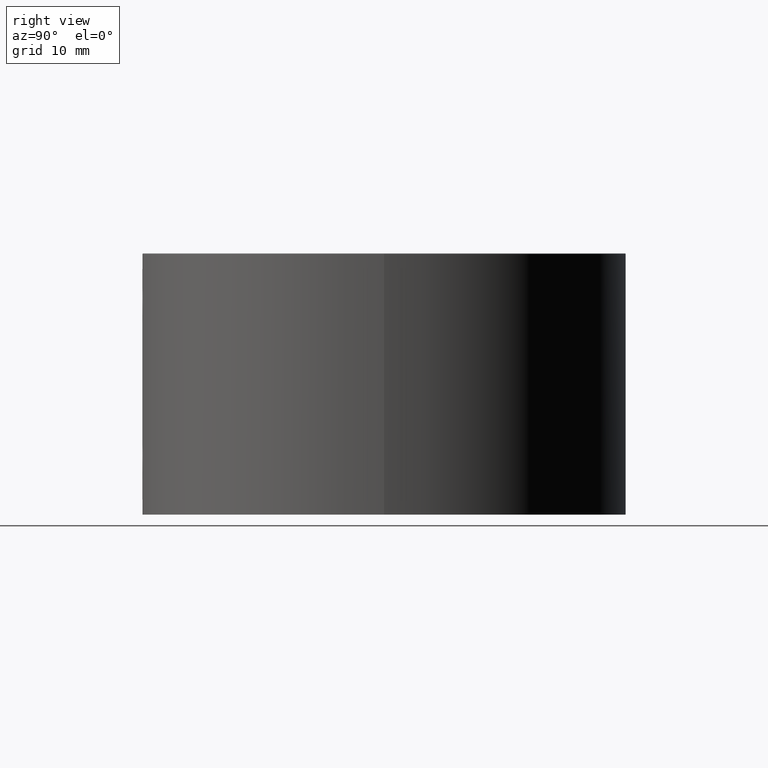
[diagram: clean part render]
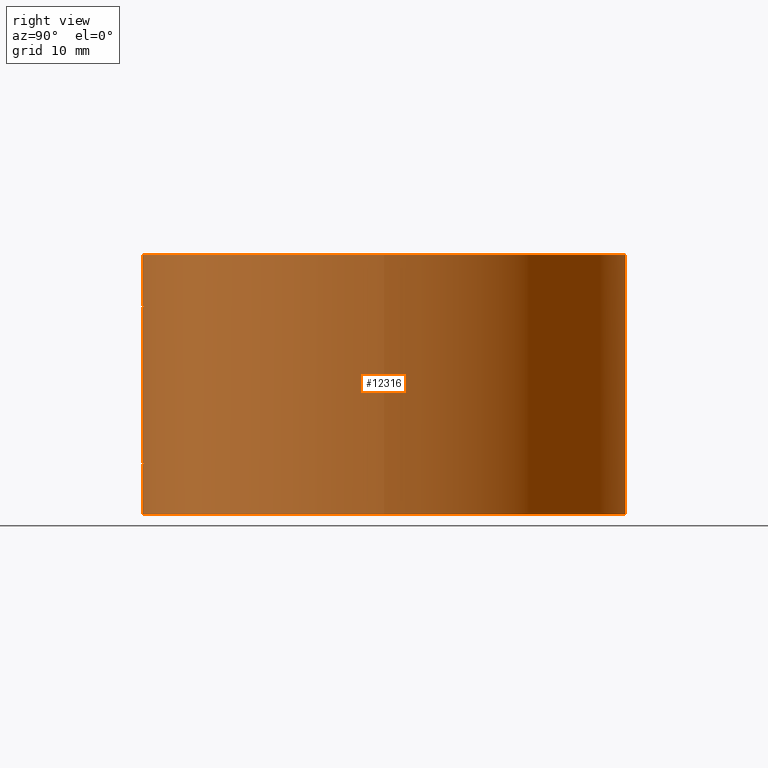
[diagram: same view with one face highlighted and labeled with its STEP entity id]
A machine part, right view. The second image highlights one B-rep face of the part: STEP entity #12316.
In plain terms, the highlighted cylindrical surface (bore or boss wall) has radius 27.75 mm, axis along (-0, -0, -1).
Its self-contained STEP definition (entity closure, byte-faithful):
#147 = AXIS2_PLACEMENT_3D ( 'NONE', #511, #6684, #9220 ) ;
#178 = CARTESIAN_POINT ( 'NONE',  ( -0.9314531760431796759, -27.73465496760087134, 25.88715481171389499 ) ) ;
#237 = CARTESIAN_POINT ( 'NONE',  ( 2.100135287995381628, -27.67041618391023405, 23.86344394396311941 ) ) ;
#336 = CARTESIAN_POINT ( 'NONE',  ( 0.5497368301601843754, -27.74570680650563759, 26.04514581682964192 ) ) ;
#511 = CARTESIAN_POINT ( 'NONE',  ( 0.000000000000000000, 0.000000000000000000, 29.89999999999999858 ) ) ;
#574 = CARTESIAN_POINT ( 'NONE',  ( -1.388246913309158836, -27.71542299461108882, 22.41837968648353296 ) ) ;
#609 = ORIENTED_EDGE ( 'NONE', *, *, #3287, .T. ) ;
#1084 = CARTESIAN_POINT ( 'NONE',  ( -0.6770708594699211824, -27.74203067985985527, 7.992619721319774051 ) ) ;
#1134 = CARTESIAN_POINT ( 'NONE',  ( -0.9313845062019184828, -27.73465706204780901, 4.112814987252454202 ) ) ;
#1364 = CARTESIAN_POINT ( 'NONE',  ( 0.000000000000000000, -27.75000000000000000, 21.90000000000000213 ) ) ;
#1404 = EDGE_LOOP ( 'NONE', ( #9396 ) ) ;
#1431 = CARTESIAN_POINT ( 'NONE',  ( -1.387645891471696924, -27.71545715402686483, 25.58229404542272079 ) ) ;
#1533 = CARTESIAN_POINT ( 'NONE',  ( 1.283714017779448380, -27.72052907553067769, 22.33233499219327811 ) ) ;
#1590 = CARTESIAN_POINT ( 'NONE',  ( 1.054536717715771621, -27.73019304328358814, 22.17874203675160771 ) ) ;
#1645 = CARTESIAN_POINT ( 'NONE',  ( 0.2775784939359418058, -27.75000000000001066, 21.90000000000001279 ) ) ;
#1766 = CIRCLE ( 'NONE', #8744, 27.75000000000000000 ) ;
#1807 = CARTESIAN_POINT ( 'NONE',  ( 0.000000000000000000, 0.000000000000000000, 30.00000000000000000 ) ) ;
#1811 = CARTESIAN_POINT ( 'NONE',  ( -0.6770944502861252490, -27.74202989244267314, 22.00739179061118378 ) ) ;
#1867 = CARTESIAN_POINT ( 'NONE',  ( -2.099851749800099476, -27.67043770255316204, 23.72485266888208955 ) ) ;
#2024 = CARTESIAN_POINT ( 'NONE',  ( 0.000000000000000000, 0.000000000000000000, 0.000000000000000000 ) ) ;
#2027 = ORIENTED_EDGE ( 'NONE', *, *, #7776, .T. ) ;
#2291 = CARTESIAN_POINT ( 'NONE',  ( -0.9314531760431782326, -27.73465496760087845, 7.887154811713890545 ) ) ;
#2344 = CARTESIAN_POINT ( 'NONE',  ( 2.086615128250103535, -27.67145183722075430, 5.726575690837746535 ) ) ;
#2406 = CARTESIAN_POINT ( 'NONE',  ( 1.289694650089932004, -27.72069356187030209, 7.679778335166921543 ) ) ;
#2468 = CARTESIAN_POINT ( 'NONE',  ( 1.886373178871117107, -27.68586094882643422, 6.933012396719078652 ) ) ;
#2519 = CARTESIAN_POINT ( 'NONE',  ( -0.5461746830350118209, -27.74495099199501880, 8.032369314986372189 ) ) ;
#2803 = CARTESIAN_POINT ( 'NONE',  ( 1.289694650089932226, -27.72069356187027722, 25.67977833516691888 ) ) ;
#3077 = DIRECTION ( 'NONE',  ( -0.000000000000000000, -0.000000000000000000, -1.000000000000000000 ) ) ;
#3081 = CARTESIAN_POINT ( 'NONE',  ( -2.044650140566914853, -27.67477067386517930, 23.44844010035110671 ) ) ;
#3287 = EDGE_CURVE ( 'NONE', #5257, #5257, #1766, .T. ) ;
#3568 = CARTESIAN_POINT ( 'NONE',  ( -1.388246913309160169, -27.71542299461107461, 4.418379686483516977 ) ) ;
#3624 = CARTESIAN_POINT ( 'NONE',  ( 2.100135287995382072, -27.67041618391024826, 5.863443943963113192 ) ) ;
#3679 = CARTESIAN_POINT ( 'NONE',  ( -1.054181356995809393, -27.73020277407211154, 7.821375413892840633 ) ) ;
#3731 = CARTESIAN_POINT ( 'NONE',  ( 0.9322188285555976783, -27.73462512964660931, 4.113290573017101437 ) ) ;
#3783 = CARTESIAN_POINT ( 'NONE',  ( 1.055318807688667926, -27.73107929722797138, 7.836064870495840218 ) ) ;
#3869 = FACE_OUTER_BOUND ( 'NONE', #1404, .T. ) ;
#3969 = CARTESIAN_POINT ( 'NONE',  ( 1.886373178871117551, -27.68586094882643778, 24.93301239671908931 ) ) ;
#4025 = CARTESIAN_POINT ( 'NONE',  ( 2.032521803465545673, -27.67547791375636379, 24.54551838333998148 ) ) ;
#4065 = CARTESIAN_POINT ( 'NONE',  ( 27.75000000000000000, 0.000000000000000000, 0.000000000000000000 ) ) ;
#4077 = CARTESIAN_POINT ( 'NONE',  ( -0.5461746830350124871, -27.74495099199501169, 26.03236931498637219 ) ) ;
#4117 = EDGE_CURVE ( 'NONE', #7865, #7865, #7632, .T. ) ;
#4130 = CARTESIAN_POINT ( 'NONE',  ( 0.5533441010483818312, -27.74563321337595667, 21.95583074806566160 ) ) ;
#4577 = DIRECTION ( 'NONE',  ( 1.000000000000000000, 0.000000000000000000, 0.000000000000000000 ) ) ;
#4859 = CARTESIAN_POINT ( 'NONE',  ( -0.2752493424353873452, -27.74895959853548533, 3.913623482119768404 ) ) ;
#4917 = CARTESIAN_POINT ( 'NONE',  ( -0.1387892469679742613, -27.74999999999999645, 3.899999999999999023 ) ) ;
#4971 = CARTESIAN_POINT ( 'NONE',  ( 1.671479684951015621, -27.69971954205690423, 4.721342616974526507 ) ) ;
#5036 = CARTESIAN_POINT ( 'NONE',  ( 0.2775784939359482451, -27.75000000000000355, 3.900000000000001688 ) ) ;
#5090 = CARTESIAN_POINT ( 'NONE',  ( 1.054536717715772509, -27.73019304328359524, 4.178742036751603273 ) ) ;
#5257 = VERTEX_POINT ( 'NONE', #4065 ) ;
#5350 = CARTESIAN_POINT ( 'NONE',  ( 0.000000000000000000, -27.75000000000000000, 3.900000000000000799 ) ) ;
#5426 = CARTESIAN_POINT ( 'NONE',  ( 1.580385993569368486, -27.70513122278481433, 25.38964815610693293 ) ) ;
#5657 = CARTESIAN_POINT ( 'NONE',  ( -2.100073665973930304, -27.67042086060467554, 24.13587293226681041 ) ) ;
#6135 = CARTESIAN_POINT ( 'NONE',  ( 0.2733774737673620447, -27.75000748944351514, 8.100098967652751725 ) ) ;
#6203 = CARTESIAN_POINT ( 'NONE',  ( -1.822310398978727042, -27.69020550363676847, 7.052568411212628341 ) ) ;
#6267 = CARTESIAN_POINT ( 'NONE',  ( 1.582893237568793632, -27.70498772298811474, 4.613199249688428871 ) ) ;
#6319 = CARTESIAN_POINT ( 'NONE',  ( -1.281525137934095060, -27.72062657202101832, 7.669251344948941451 ) ) ;
#6565 = CARTESIAN_POINT ( 'NONE',  ( -0.1378275132829973881, -27.74999623970092699, 26.09995031033048107 ) ) ;
#6623 = CARTESIAN_POINT ( 'NONE',  ( -1.993201650978320805, -27.67837469007850970, 24.67533679504433763 ) ) ;
#6684 = DIRECTION ( 'NONE',  ( -0.000000000000000000, -0.000000000000000000, -1.000000000000000000 ) ) ;
#6716 = CARTESIAN_POINT ( 'NONE',  ( 27.75000000000000000, 0.000000000000000000, 29.89999999999999858 ) ) ;
#6734 = CARTESIAN_POINT ( 'NONE',  ( 1.669124253835494009, -27.69986233828631583, 25.28174471779973942 ) ) ;
#6967 = DIRECTION ( 'NONE',  ( -1.000000000000000000, 0.000000000000000000, 0.000000000000000000 ) ) ;
#6973 = CARTESIAN_POINT ( 'NONE',  ( 4.065758146820641628E-17, -27.75000000000000355, 21.90000000000000924 ) ) ;
#7394 = CARTESIAN_POINT ( 'NONE',  ( -1.678710403799640538, -27.69985625288131459, 4.708899456302333419 ) ) ;
#7455 = CARTESIAN_POINT ( 'NONE',  ( 1.991949191871799973, -27.67846525125115065, 6.679009808027167594 ) ) ;
#7485 = VERTEX_POINT ( 'NONE', #1364 ) ;
#7510 = CARTESIAN_POINT ( 'NONE',  ( -1.387645891471697590, -27.71545715402686483, 7.582294045422715456 ) ) ;
#7560 = CARTESIAN_POINT ( 'NONE',  ( 1.888005149728685383, -27.68574941688964941, 5.070262498749473323 ) ) ;
#7601 = EDGE_LOOP ( 'NONE', ( #609 ) ) ;
#7617 = CARTESIAN_POINT ( 'NONE',  ( 5.421010862427522170E-17, -27.75000000000000000, 3.899999999999999911 ) ) ;
#7632 = B_SPLINE_CURVE_WITH_KNOTS ( 'NONE', 3,
 ( #11300, #4917, #4859, #14022, #13856, #1134, #11246, #10056, #3568, #7394, #8709, #12774, #10166, #15179, #16474, #15130, #15071, #8822, #6203, #12547, #9931, #7510, #6319, #3679, #2291, #1084, #2519, #11471, #15236, #6135, #10110, #3783, #2406, #16410, #8767, #11354, #2468, #7455, #12662, #9993, #15294, #3624, #2344, #12597, #13972, #7560, #13914, #4971, #6267, #16532, #11414, #5090, #3731, #12721, #5036, #7617 ),
 .UNSPECIFIED., .T., .F.,
 ( 4, 2, 2, 2, 2, 2, 2, 2, 2, 2, 2, 2, 2, 2, 2, 2, 2, 2, 2, 2, 2, 2, 2, 2, 2, 2, 2, 4 ),
 ( 0.000000000000000000, 0.0004104466394906816748, 0.0008208932789813634581, 0.001231339918472045296, 0.001641786557962727350, 0.002462679836944092759, 0.003283573115925458169, 0.003694019755416139573, 0.004104466394906821844, 0.004514913034397502814, 0.004925359673888184651, 0.005335806313378866489, 0.005746252952869549194, 0.006156699592360232766, 0.006567146231850915471, 0.007388039510832280880, 0.008208932789813647157, 0.008619379429304328127, 0.009029826068795010832, 0.009440272708285693537, 0.009850719347776372772, 0.01026116598726705548, 0.01067161262675773818, 0.01108205926624841915, 0.01149250590573910012, 0.01190295254522978283, 0.01231339918472046553, 0.01313429246370182747 ),
 .UNSPECIFIED. ) ;
#7776 = EDGE_CURVE ( 'NONE', #7485, #7485, #16373, .T. ) ;
#7853 = CARTESIAN_POINT ( 'NONE',  ( 2.033490250414342615, -27.67540653494614489, 23.45811352872315680 ) ) ;
#7865 = VERTEX_POINT ( 'NONE', #5350 ) ;
#7900 = CARTESIAN_POINT ( 'NONE',  ( -0.2770401611457110613, -27.74894342279911541, 26.08616407935687320 ) ) ;
#7946 = CARTESIAN_POINT ( 'NONE',  ( 1.823585129496081203, -27.69012178234855881, 22.94959706976310443 ) ) ;
#8008 = CARTESIAN_POINT ( 'NONE',  ( -1.054181356995808727, -27.73020277407211154, 25.82137541389284152 ) ) ;
#8098 = EDGE_LOOP ( 'NONE', ( #12590 ) ) ;
#8171 = CARTESIAN_POINT ( 'NONE',  ( -0.5437047600999955765, -27.74499785791143935, 21.96699377553393262 ) ) ;
#8709 = CARTESIAN_POINT ( 'NONE',  ( -1.835153934096956041, -27.68945171155463925, 4.943107120664794962 ) ) ;
#8744 = AXIS2_PLACEMENT_3D ( 'NONE', #2024, #12277, #4577 ) ;
#8767 = CARTESIAN_POINT ( 'NONE',  ( 1.669124253835494232, -27.69986233828630517, 7.281744717799734090 ) ) ;
#8822 = CARTESIAN_POINT ( 'NONE',  ( -1.888040470575856444, -27.68574690138066074, 6.929642829086072986 ) ) ;
#8875 = FACE_OUTER_BOUND ( 'NONE', #7601, .T. ) ;
#9104 = CARTESIAN_POINT ( 'NONE',  ( 2.086137350559156722, -27.67148809860035286, 24.27706703652133413 ) ) ;
#9157 = CARTESIAN_POINT ( 'NONE',  ( 1.671479684951014955, -27.69971954205690778, 22.72134261697453539 ) ) ;
#9220 = DIRECTION ( 'NONE',  ( 1.000000000000000000, 0.000000000000000000, 0.000000000000000000 ) ) ;
#9273 = CARTESIAN_POINT ( 'NONE',  ( 0.9322188285555973453, -27.73462512964663063, 22.11329057301711032 ) ) ;
#9396 = ORIENTED_EDGE ( 'NONE', *, *, #16235, .T. ) ;
#9449 = CARTESIAN_POINT ( 'NONE',  ( -0.2752493424353874008, -27.74895959853547467, 21.91362348211978173 ) ) ;
#9503 = CARTESIAN_POINT ( 'NONE',  ( -1.835153934096955375, -27.68945171155465701, 22.94310712066479852 ) ) ;
#9653 = CIRCLE ( 'NONE', #147, 27.75000000000000000 ) ;
#9931 = CARTESIAN_POINT ( 'NONE',  ( -1.583592688353821831, -27.70495191430964255, 7.386163685749552954 ) ) ;
#9993 = CARTESIAN_POINT ( 'NONE',  ( 2.086137350559157166, -27.67148809860034930, 6.277067036521342125 ) ) ;
#10056 = CARTESIAN_POINT ( 'NONE',  ( -1.280221060595400084, -27.72068866758818828, 4.329711721484724052 ) ) ;
#10110 = CARTESIAN_POINT ( 'NONE',  ( 0.5497368301601858187, -27.74570680650563759, 8.045145816829638363 ) ) ;
#10166 = CARTESIAN_POINT ( 'NONE',  ( -2.099851749800098588, -27.67043770255316915, 5.724852668882084217 ) ) ;
#10274 = CYLINDRICAL_SURFACE ( 'NONE', #10401, 27.75000000000000000 ) ;
#10398 = CARTESIAN_POINT ( 'NONE',  ( 2.086615128250106199, -27.67145183722077206, 23.72657569083775897 ) ) ;
#10401 = AXIS2_PLACEMENT_3D ( 'NONE', #1807, #3077, #6967 ) ;
#10426 = VERTEX_POINT ( 'NONE', #6716 ) ;
#10508 = CARTESIAN_POINT ( 'NONE',  ( 1.991949191871799085, -27.67846525125115775, 24.67900980802717470 ) ) ;
#10560 = CARTESIAN_POINT ( 'NONE',  ( 1.888005149728686050, -27.68574941688963875, 23.07026249874947865 ) ) ;
#10736 = CARTESIAN_POINT ( 'NONE',  ( -1.678710403799638540, -27.69985625288131459, 22.70889945630233697 ) ) ;
#10809 = CARTESIAN_POINT ( 'NONE',  ( -2.086434696265639044, -27.67146566557873300, 24.27504145150320269 ) ) ;
#11246 = CARTESIAN_POINT ( 'NONE',  ( -1.051983183663668386, -27.73028808993216288, 4.177320577110064548 ) ) ;
#11300 = CARTESIAN_POINT ( 'NONE',  ( 5.421010862427522170E-17, -27.75000000000000000, 3.899999999999999911 ) ) ;
#11354 = CARTESIAN_POINT ( 'NONE',  ( 1.821783258819652085, -27.69024115266311270, 7.053542146396562629 ) ) ;
#11414 = CARTESIAN_POINT ( 'NONE',  ( 1.283714017779449268, -27.72052907553067058, 4.332334992193279000 ) ) ;
#11471 = CARTESIAN_POINT ( 'NONE',  ( -0.2770401611457115609, -27.74894342279912607, 8.086164079356876755 ) ) ;
#11597 = CARTESIAN_POINT ( 'NONE',  ( 2.099862681643742679, -27.67043687289605813, 24.14068582929259321 ) ) ;
#11659 = CARTESIAN_POINT ( 'NONE',  ( -1.583592688353820721, -27.70495191430965676, 25.38616368574954762 ) ) ;
#11758 = CARTESIAN_POINT ( 'NONE',  ( 4.065758146820641628E-17, -27.75000000000000355, 21.90000000000000924 ) ) ;
#11814 = CARTESIAN_POINT ( 'NONE',  ( 1.993278196966177029, -27.67836928451001555, 23.32485757344625199 ) ) ;
#12056 = CARTESIAN_POINT ( 'NONE',  ( -0.1387892469679742613, -27.74999999999999645, 21.90000000000000924 ) ) ;
#12277 = DIRECTION ( 'NONE',  ( 0.000000000000000000, 0.000000000000000000, 1.000000000000000000 ) ) ;
#12316 = ADVANCED_FACE ( 'NONE', ( #3869, #12718, #13723, #8875 ), #10274, .T. ) ;
#12547 = CARTESIAN_POINT ( 'NONE',  ( -1.670348957126389866, -27.69978755126630432, 7.280097579067884794 ) ) ;
#12590 = ORIENTED_EDGE ( 'NONE', *, *, #4117, .T. ) ;
#12597 = CARTESIAN_POINT ( 'NONE',  ( 2.033490250414341727, -27.67540653494613778, 5.458113528723151475 ) ) ;
#12662 = CARTESIAN_POINT ( 'NONE',  ( 2.032521803465546117, -27.67547791375638155, 6.545518383339981483 ) ) ;
#12718 = FACE_BOUND ( 'NONE', #8098, .T. ) ;
#12721 = CARTESIAN_POINT ( 'NONE',  ( 0.5533441010483820532, -27.74563321337595667, 3.955830748065657598 ) ) ;
#12774 = CARTESIAN_POINT ( 'NONE',  ( -2.044650140566913965, -27.67477067386517930, 5.448440100351112036 ) ) ;
#12903 = CARTESIAN_POINT ( 'NONE',  ( -1.822310398978727486, -27.69020550363676136, 25.05256841121262568 ) ) ;
#12953 = CARTESIAN_POINT ( 'NONE',  ( 1.389308258430544507, -27.71536971240901792, 22.41930715011977782 ) ) ;
#13004 = CARTESIAN_POINT ( 'NONE',  ( -0.6770708594699229588, -27.74203067985986948, 25.99261972131978737 ) ) ;
#13125 = CARTESIAN_POINT ( 'NONE',  ( -1.281525137934094838, -27.72062657202102542, 25.66925134494893967 ) ) ;
#13352 = CARTESIAN_POINT ( 'NONE',  ( -1.280221060595399862, -27.72068866758819183, 22.32971172148472760 ) ) ;
#13723 = FACE_BOUND ( 'NONE', #15885, .T. ) ;
#13856 = CARTESIAN_POINT ( 'NONE',  ( -0.6770944502861253600, -27.74202989244268736, 4.007391790611191773 ) ) ;
#13914 = CARTESIAN_POINT ( 'NONE',  ( 1.823585129496082757, -27.69012178234856236, 4.949597069763107093 ) ) ;
#13972 = CARTESIAN_POINT ( 'NONE',  ( 1.993278196966177029, -27.67836928451000489, 5.324857573446253767 ) ) ;
#14022 = CARTESIAN_POINT ( 'NONE',  ( -0.5437047600999956876, -27.74499785791143935, 3.966993775533935729 ) ) ;
#14200 = CARTESIAN_POINT ( 'NONE',  ( 0.2733774737673614896, -27.75000748944350804, 26.10009896765275528 ) ) ;
#14260 = CARTESIAN_POINT ( 'NONE',  ( -1.888040470575855556, -27.68574690138065719, 24.92964282908607387 ) ) ;
#14306 = CARTESIAN_POINT ( 'NONE',  ( -1.670348957126390754, -27.69978755126630787, 25.28009757906789190 ) ) ;
#14408 = CARTESIAN_POINT ( 'NONE',  ( 1.055318807688666594, -27.73107929722797493, 25.83606487049583933 ) ) ;
#14642 = CARTESIAN_POINT ( 'NONE',  ( -0.9313845062019187049, -27.73465706204780545, 22.11281498725245598 ) ) ;
#15071 = CARTESIAN_POINT ( 'NONE',  ( -1.993201650978321249, -27.67837469007849549, 6.675336795044333194 ) ) ;
#15130 = CARTESIAN_POINT ( 'NONE',  ( -2.032849373642692470, -27.67545383994929864, 6.544408822399660153 ) ) ;
#15179 = CARTESIAN_POINT ( 'NONE',  ( -2.100073665973929860, -27.67042086060466488, 6.135872932266812185 ) ) ;
#15236 = CARTESIAN_POINT ( 'NONE',  ( -0.1378275132829964444, -27.74999623970092699, 8.099950310330484626 ) ) ;
#15294 = CARTESIAN_POINT ( 'NONE',  ( 2.099862681643743567, -27.67043687289606879, 6.140685829292588771 ) ) ;
#15578 = CARTESIAN_POINT ( 'NONE',  ( 1.821783258819651197, -27.69024115266311270, 25.05354214639656618 ) ) ;
#15700 = CARTESIAN_POINT ( 'NONE',  ( 1.582893237568793632, -27.70498772298811119, 22.61319924968842443 ) ) ;
#15875 = CARTESIAN_POINT ( 'NONE',  ( -2.032849373642691582, -27.67545383994928798, 24.54440882239965660 ) ) ;
#15885 = EDGE_LOOP ( 'NONE', ( #2027 ) ) ;
#15929 = CARTESIAN_POINT ( 'NONE',  ( -1.051983183663668164, -27.73028808993215932, 22.17732057711007343 ) ) ;
#16235 = EDGE_CURVE ( 'NONE', #10426, #10426, #9653, .T. ) ;
#16373 = B_SPLINE_CURVE_WITH_KNOTS ( 'NONE', 3,
 ( #6973, #12056, #9449, #8171, #1811, #14642, #15929, #13352, #574, #10736, #9503, #3081, #1867, #5657, #10809, #15875, #6623, #14260, #12903, #14306, #11659, #1431, #13125, #8008, #178, #13004, #4077, #7900, #6565, #14200, #336, #14408, #2803, #5426, #6734, #15578, #3969, #10508, #4025, #9104, #11597, #237, #10398, #7853, #11814, #10560, #7946, #9157, #15700, #12953, #1533, #1590, #9273, #4130, #1645, #11758 ),
 .UNSPECIFIED., .T., .F.,
 ( 4, 2, 2, 2, 2, 2, 2, 2, 2, 2, 2, 2, 2, 2, 2, 2, 2, 2, 2, 2, 2, 2, 2, 2, 2, 2, 2, 4 ),
 ( 0.000000000000000000, 0.0004104466394906872042, 0.0008208932789813744085, 0.001231339918472061559, 0.001641786557962748817, 0.002462679836944122683, 0.003283573115925496767, 0.003694019755416178604, 0.004104466394906860875, 0.004514913034397542713, 0.004925359673888225417, 0.005335806313378907255, 0.005746252952869589092, 0.006156699592360271797, 0.006567146231850952767, 0.007388039510832316442, 0.008208932789813680117, 0.008619379429304359352, 0.009029826068795038588, 0.009440272708285716088, 0.009850719347776395324, 0.01026116598726707282, 0.01067161262675775033, 0.01108205926624842956, 0.01149250590573910706, 0.01190295254522978630, 0.01231339918472046553, 0.01313429246370182053 ),
 .UNSPECIFIED. ) ;
#16410 = CARTESIAN_POINT ( 'NONE',  ( 1.580385993569371816, -27.70513122278482498, 7.389648156106941812 ) ) ;
#16474 = CARTESIAN_POINT ( 'NONE',  ( -2.086434696265638600, -27.67146566557872944, 6.275041451503197365 ) ) ;
#16532 = CARTESIAN_POINT ( 'NONE',  ( 1.389308258430542731, -27.71536971240902858, 4.419307150119776928 ) ) ;